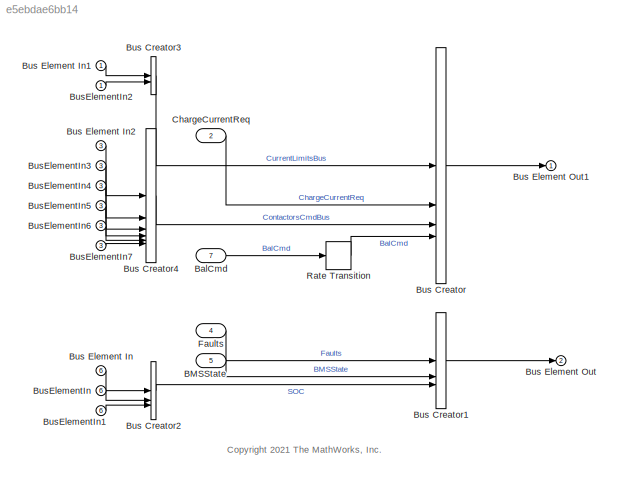
MODEL slx_e5ebdae6bb14
KIND model
CONFIG AbsTol = auto
CONFIG EnableMultiTasking = off
CONFIG FixedStep = auto
CONFIG MaxStep = auto
CONFIG MinStep = auto
CONFIG RelTol = 1e-3
CONFIG SampleTimeConstraint = Unconstrained
CONFIG SolverName = FixedStepDiscrete
CONFIG StartTime = 0.0
CONFIG StopTime = 10000
BLOCK [Inport] BMSState
  Port = 5
  PortDimensions = 1
  SampleTime = [0.10000000000000001,0]
  SamplingMode = Sample based
  SignalType = real
BLOCK [Inport] BalCmd
  OutDataTypeStr = boolean
  Port = 7
  PortDimensions = [1 PlntBattNumCellSer]
  SampleTime = [5,0]
  SamplingMode = Sample based
  SignalType = real
BLOCK [BusCreator] Bus Creator
  DisplayOption = bar
  InheritFromInputs = on
  Inputs = 4
BLOCK [BusCreator] Bus Creator1
  DisplayOption = bar
  InheritFromInputs = on
  Inputs = 3
BLOCK [BusCreator] Bus Creator2
  DisplayOption = bar
  InheritFromInputs = on
  Inputs = 3
BLOCK [BusCreator] Bus Creator3
  DisplayOption = bar
  InheritFromInputs = on
  Inputs = 2
BLOCK [BusCreator] Bus Creator4
  DisplayOption = bar
  InheritFromInputs = on
  Inputs = 6
BLOCK [Inport] Bus Element In
  Port = 6
BLOCK [Inport] Bus Element In1
BLOCK [Inport] Bus Element In2
  Port = 3
BLOCK [Outport] Bus Element Out
  Port = 2
BLOCK [Outport] Bus Element Out1
BLOCK [Inport] BusElementIn
  Port = 6
BLOCK [Inport] BusElementIn1
  Port = 6
BLOCK [Inport] BusElementIn2
BLOCK [Inport] BusElementIn3
  Port = 3
BLOCK [Inport] BusElementIn4
  Port = 3
BLOCK [Inport] BusElementIn5
  Port = 3
BLOCK [Inport] BusElementIn6
  Port = 3
BLOCK [Inport] BusElementIn7
  Port = 3
BLOCK [Inport] ChargeCurrentReq
  OutDataTypeStr = single
  Port = 2
  PortDimensions = 1
  SampleTime = [0.10000000000000001,0]
  SamplingMode = Sample based
  SignalType = real
BLOCK [Inport] Faults
  OutDataTypeStr = boolean
  Port = 4
BLOCK [RateTransition] Rate Transition
  Deterministic = off
  Integrity = off
ANNOTATION (root): <copyright redacted>
LINE BMSState:1 -> Bus Creator1:2
LINE BalCmd:1 -> Rate Transition:1
LINE Bus Creator1:1 -> Bus Element Out:1
LINE Bus Creator2:1 -> Bus Creator1:3
LINE Bus Creator3:1 -> Bus Creator:1
LINE Bus Creator4:1 -> Bus Creator:3
LINE Bus Creator:1 -> Bus Element Out1:1
LINE Bus Element In1:1 -> Bus Creator3:1
LINE Bus Element In2:1 -> Bus Creator4:1
LINE Bus Element In:1 -> Bus Creator2:1
LINE BusElementIn1:1 -> Bus Creator2:3
LINE BusElementIn2:1 -> Bus Creator3:2
LINE BusElementIn3:1 -> Bus Creator4:2
LINE BusElementIn4:1 -> Bus Creator4:3
LINE BusElementIn5:1 -> Bus Creator4:4
LINE BusElementIn6:1 -> Bus Creator4:5
LINE BusElementIn7:1 -> Bus Creator4:6
LINE BusElementIn:1 -> Bus Creator2:2
LINE ChargeCurrentReq:1 -> Bus Creator:2
LINE Faults:1 -> Bus Creator1:1
LINE Rate Transition:1 -> Bus Creator:4
